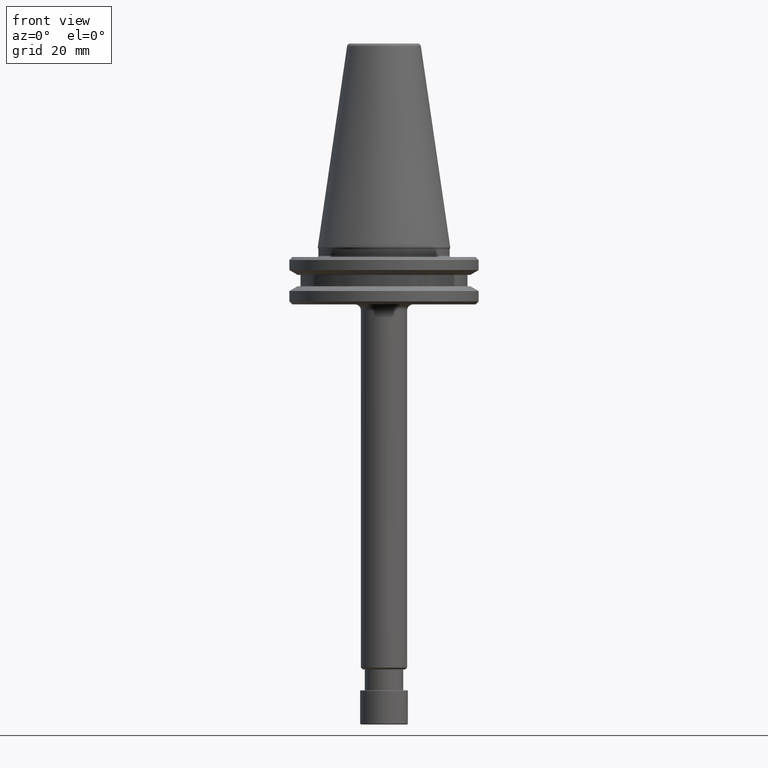
[diagram: clean part render]
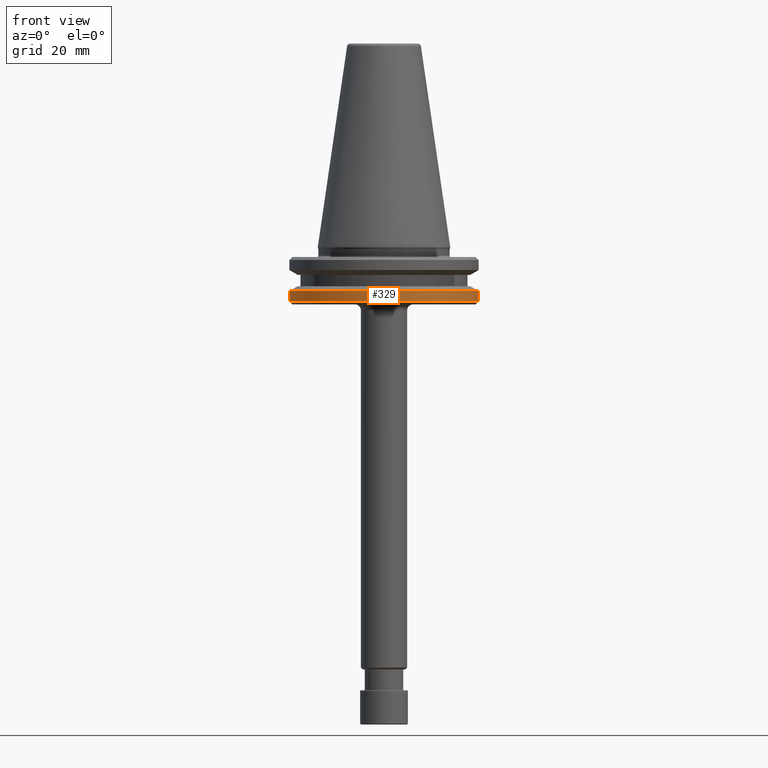
[diagram: same view with one face highlighted and labeled with its STEP entity id]
A machine part, front view. The second image highlights one B-rep face of the part: STEP entity #329.
In plain terms, the highlighted cylindrical surface (partial cylindrical patch) has radius 31.75 mm, axis along (-0, -0, 1).
Its self-contained STEP definition (entity closure, byte-faithful):
#43 = LINE ( 'NONE', #1116, #207 ) ;
#60 = EDGE_CURVE ( 'NONE', #145, #1120, #947, .T. ) ;
#129 = DIRECTION ( 'NONE',  ( -0.0000000000000000000, -0.0000000000000000000, 1.000000000000000000 ) ) ;
#133 = CARTESIAN_POINT ( 'NONE',  ( -31.74999999999994300, 3.888253587292839400E-015, 78.77816335794347000 ) ) ;
#145 = VERTEX_POINT ( 'NONE', #265 ) ;
#157 = EDGE_CURVE ( 'NONE', #145, #461, #443, .T. ) ;
#183 = DIRECTION ( 'NONE',  ( 1.000000000000000000, 0.0000000000000000000, 0.0000000000000000000 ) ) ;
#189 = EDGE_CURVE ( 'NONE', #1120, #1180, #763, .T. ) ;
#207 = VECTOR ( 'NONE', #1020, 1000.000000000000000 ) ;
#240 = CARTESIAN_POINT ( 'NONE',  ( 31.74999999999994300, 0.0000000000000000000, 75.29999999999925800 ) ) ;
#265 = CARTESIAN_POINT ( 'NONE',  ( -31.74999999999994300, 3.888253587292839400E-015, 75.29999999999925800 ) ) ;
#272 = DIRECTION ( 'NONE',  ( -0.0000000000000000000, -0.0000000000000000000, 1.000000000000000000 ) ) ;
#291 = DIRECTION ( 'NONE',  ( 1.000000000000000000, 0.0000000000000000000, 0.0000000000000000000 ) ) ;
#300 = VECTOR ( 'NONE', #129, 1000.000000000000000 ) ;
#329 = ADVANCED_FACE ( 'NONE', ( #804 ), #581, .T. ) ;
#410 = CARTESIAN_POINT ( 'NONE',  ( 0.0000000000000000000, 0.0000000000000000000, 223.7483139439238500 ) ) ;
#443 = CIRCLE ( 'NONE', #1028, 31.74999999999994300 ) ;
#461 = VERTEX_POINT ( 'NONE', #240 ) ;
#518 = CARTESIAN_POINT ( 'NONE',  ( -31.74999999999994300, 3.888253587292839400E-015, 223.7483139439238500 ) ) ;
#557 = EDGE_LOOP ( 'NONE', ( #1123, #608, #1171, #1102 ) ) ;
#558 = CARTESIAN_POINT ( 'NONE',  ( 0.0000000000000000000, 0.0000000000000000000, 78.77816335794347000 ) ) ;
#576 = AXIS2_PLACEMENT_3D ( 'NONE', #558, #272, #838 ) ;
#581 = CYLINDRICAL_SURFACE ( 'NONE', #613, 31.74999999999994300 ) ;
#608 = ORIENTED_EDGE ( 'NONE', *, *, #157, .T. ) ;
#613 = AXIS2_PLACEMENT_3D ( 'NONE', #410, #984, #291 ) ;
#636 = DIRECTION ( 'NONE',  ( -0.0000000000000000000, -0.0000000000000000000, 1.000000000000000000 ) ) ;
#763 = CIRCLE ( 'NONE', #576, 31.74999999999994300 ) ;
#804 = FACE_OUTER_BOUND ( 'NONE', #557, .T. ) ;
#805 = CARTESIAN_POINT ( 'NONE',  ( 31.74999999999994300, 0.0000000000000000000, 78.77816335794347000 ) ) ;
#835 = EDGE_CURVE ( 'NONE', #461, #1180, #43, .T. ) ;
#838 = DIRECTION ( 'NONE',  ( 1.000000000000000000, 0.0000000000000000000, 0.0000000000000000000 ) ) ;
#947 = LINE ( 'NONE', #518, #300 ) ;
#984 = DIRECTION ( 'NONE',  ( -0.0000000000000000000, -0.0000000000000000000, 1.000000000000000000 ) ) ;
#1020 = DIRECTION ( 'NONE',  ( -0.0000000000000000000, -0.0000000000000000000, 1.000000000000000000 ) ) ;
#1028 = AXIS2_PLACEMENT_3D ( 'NONE', #1252, #636, #183 ) ;
#1102 = ORIENTED_EDGE ( 'NONE', *, *, #189, .F. ) ;
#1116 = CARTESIAN_POINT ( 'NONE',  ( 31.74999999999994300, 0.0000000000000000000, 223.7483139439238500 ) ) ;
#1120 = VERTEX_POINT ( 'NONE', #133 ) ;
#1123 = ORIENTED_EDGE ( 'NONE', *, *, #60, .F. ) ;
#1171 = ORIENTED_EDGE ( 'NONE', *, *, #835, .T. ) ;
#1180 = VERTEX_POINT ( 'NONE', #805 ) ;
#1252 = CARTESIAN_POINT ( 'NONE',  ( 0.0000000000000000000, 0.0000000000000000000, 75.29999999999925800 ) ) ;